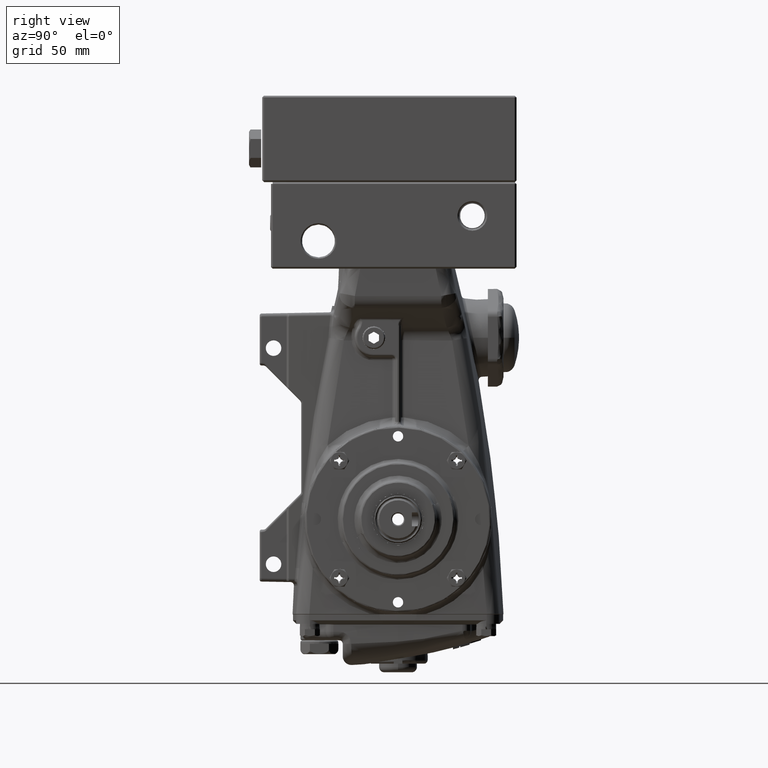
[diagram: clean part render]
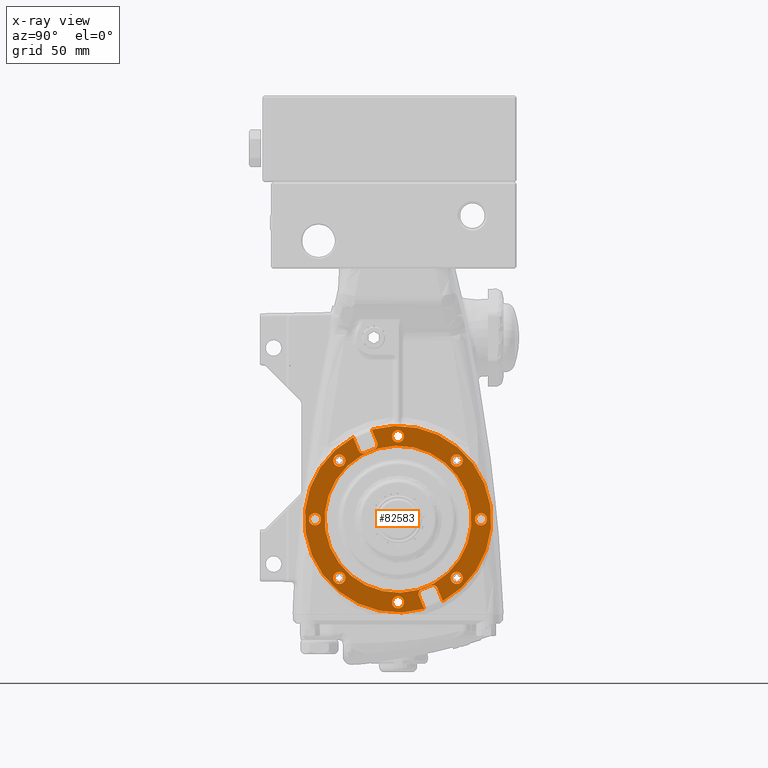
[diagram: x-ray — body ghosted, one internal face saturated and labeled with its STEP entity id]
A machine part, right view, then the same camera in x-ray: the body is ghosted and one INTERNAL B-rep face — a face not visible from any outside direction — is saturated and labeled: STEP entity #82583.
In plain terms, the highlighted planar face has unit normal (1, -0, -0).
Its self-contained STEP definition (entity closure, byte-faithful):
#111 = CARTESIAN_POINT ( 'NONE',  ( 2.805118110236220375, -0.1273062347948776818, -1.942495748554252444 ) ) ;
#436 = CARTESIAN_POINT ( 'NONE',  ( 2.805118110236220375, 0.4909394121759702023, -1.630885175054118452 ) ) ;
#502 = EDGE_CURVE ( 'NONE', #15230, #66706, #2911, .T. ) ;
#674 = AXIS2_PLACEMENT_3D ( 'NONE', #65911, #72049, #46215 ) ;
#861 = CARTESIAN_POINT ( 'NONE',  ( 2.805118110236220375, 1.545861422509051675, 0.6403167667525806461 ) ) ;
#1009 = CARTESIAN_POINT ( 'NONE',  ( 2.805118110236219042, -0.7868191351407367584, 1.500140080860280056 ) ) ;
#1464 = ORIENTED_EDGE ( 'NONE', *, *, #45461, .T. ) ;
#1624 = CARTESIAN_POINT ( 'NONE',  ( 2.805118110236220375, -1.964153336835031238, -0.8135789506974163698 ) ) ;
#1729 = CARTESIAN_POINT ( 'NONE',  ( 2.805118110236220375, -0.1273062347948639705, 1.837031810500866946 ) ) ;
#1845 = CARTESIAN_POINT ( 'NONE',  ( 2.805118110236220375, -0.6434612818275287083, 1.553452953450048080 ) ) ;
#2089 = EDGE_LOOP ( 'NONE', ( #63212, #4802 ) ) ;
#2306 = AXIS2_PLACEMENT_3D ( 'NONE', #37317, #23365, #63992 ) ;
#2580 = AXIS2_PLACEMENT_3D ( 'NONE', #78531, #10482, #43662 ) ;
#2657 = ORIENTED_EDGE ( 'NONE', *, *, #49130, .T. ) ;
#2798 = CIRCLE ( 'NONE', #46090, 0.1377952755905513804 ) ;
#2911 = CIRCLE ( 'NONE', #16916, 0.1377952755905513804 ) ;
#3038 = CARTESIAN_POINT ( 'NONE',  ( 2.805118110236220375, -0.8908129129571930038, 1.554810866356401311 ) ) ;
#3300 = FACE_BOUND ( 'NONE', #48386, .T. ) ;
#3475 = CARTESIAN_POINT ( 'NONE',  ( 2.805118110236220375, -0.8961633260542218871, 1.567727906219549716 ) ) ;
#3607 = DIRECTION ( 'NONE',  ( 0.000000000000000000, -0.9238795325112921786, -0.3826834323650769032 ) ) ;
#3942 = VERTEX_POINT ( 'NONE', #26843 ) ;
#4054 = CARTESIAN_POINT ( 'NONE',  ( 2.805118110236219930, -0.4909394121762119534, 1.630885175053711666 ) ) ;
#4121 = CARTESIAN_POINT ( 'NONE',  ( 2.805118110236220375, -1.889763779527559695, 1.203186958147053424E-14 ) ) ;
#4460 = DIRECTION ( 'NONE',  ( 0.000000000000000000, -0.9238795325112920676, -0.3826834323650769032 ) ) ;
#4587 = FACE_BOUND ( 'NONE', #19043, .T. ) ;
#4607 = DIRECTION ( 'NONE',  ( 0.000000000000000000, -0.9238795325112921786, -0.3826834323650766256 ) ) ;
#4802 = ORIENTED_EDGE ( 'NONE', *, *, #41402, .F. ) ;
#5210 = VERTEX_POINT ( 'NONE', #61442 ) ;
#5459 = DIRECTION ( 'NONE',  ( 1.000000000000000000, -3.956146429304290926E-21, -1.785546499036267062E-24 ) ) ;
#5547 = EDGE_CURVE ( 'NONE', #28955, #66450, #64595, .T. ) ;
#5760 = DIRECTION ( 'NONE',  ( 1.000000000000000000, -3.956146429304291678E-21, -1.785546499036624119E-24 ) ) ;
#6160 = CARTESIAN_POINT ( 'NONE',  ( 2.805118110236221263, 0.4972461327645210094, -1.623936383753845858 ) ) ;
#6195 = CARTESIAN_POINT ( 'NONE',  ( 2.805118110236220375, -1.336264783344670137, -1.336264783344653484 ) ) ;
#6239 = EDGE_CURVE ( 'NONE', #3942, #78410, #77165, .T. ) ;
#6849 = CARTESIAN_POINT ( 'NONE',  ( 2.805118110236220375, -3.414809992080329023E-16, -8.730175170377865435E-15 ) ) ;
#7034 = CARTESIAN_POINT ( 'NONE',  ( 2.805118110236221263, 0.5099515284297724271, -1.611538340931313540 ) ) ;
#7399 = VERTEX_POINT ( 'NONE', #73603 ) ;
#7561 = DIRECTION ( 'NONE',  ( 0.000000000000000000, -0.9238795325112921786, -0.3826834323650769032 ) ) ;
#7705 = CIRCLE ( 'NONE', #674, 0.1377952755905511029 ) ;
#7852 = VERTEX_POINT ( 'NONE', #1729 ) ;
#8240 = CARTESIAN_POINT ( 'NONE',  ( 2.805118110236220375, 0.7868191351406462752, -1.500140080860335123 ) ) ;
#8374 = CARTESIAN_POINT ( 'NONE',  ( 2.805118110236220375, -3.414809992080329023E-16, -8.730175170377865435E-15 ) ) ;
#8450 = ORIENTED_EDGE ( 'NONE', *, *, #78489, .T. ) ;
#9143 = CARTESIAN_POINT ( 'NONE',  ( 2.805118110236220375, 1.336264783344659479, 1.336264783344646379 ) ) ;
#9334 = EDGE_CURVE ( 'NONE', #32316, #28023, #36297, .T. ) ;
#9430 = CARTESIAN_POINT ( 'NONE',  ( 2.805118110236220375, -1.463571018139502522, 1.283532814317981829 ) ) ;
#9592 = EDGE_CURVE ( 'NONE', #63619, #68824, #2798, .T. ) ;
#9633 = CIRCLE ( 'NONE', #61294, 0.1377952755905513804 ) ;
#10303 = CARTESIAN_POINT ( 'NONE',  ( 2.805118110236220375, 0.4296690380452569680, -1.633114568622722640 ) ) ;
#10482 = DIRECTION ( 'NONE',  ( 1.000000000000000000, -3.956146429304291678E-21, -1.785546499036624119E-24 ) ) ;
#10726 = AXIS2_PLACEMENT_3D ( 'NONE', #73290, #59763, #19930 ) ;
#10731 = B_SPLINE_CURVE_WITH_KNOTS ( 'NONE', 3,
 ( #15225, #54988, #20903, #61552, #8240, #33546, #66791, #81671, #60270, #53682, #75536, #15646, #61133, #27025, #40541, #54546, #28297, #41844, #67210, #34839 ),
 .UNSPECIFIED., .F., .F.,
 ( 4, 1, 1, 1, 2, 2, 2, 1, 1, 1, 2, 2, 4 ),
 ( -1.000000000000000000, -0.8750000000000248690, -0.8125000000000373035, -0.7812500000000426326, -0.7656250000000452971, -0.7500000000000479616, -0.5000000000000782707, -0.3750000000000915934, -0.3125000000000969225, -0.2812500000000981437, -0.2656250000000963674, -0.2500000000000947020, -0.000000000000000000 ),
 .UNSPECIFIED. ) ;
#11195 = DIRECTION ( 'NONE',  ( 1.000000000000000000, -3.956146429304291678E-21, -1.785546499036624119E-24 ) ) ;
#11254 = DIRECTION ( 'NONE',  ( 1.000000000000000000, -3.956146429304291678E-21, -1.785546499036624119E-24 ) ) ;
#11489 = CARTESIAN_POINT ( 'NONE',  ( 2.805118110236220375, -0.5099515284301670004, 1.611538340931132796 ) ) ;
#12259 = CARTESIAN_POINT ( 'NONE',  ( 2.805118110236220375, -3.414809992080329023E-16, -8.730175170377865435E-15 ) ) ;
#13116 = AXIS2_PLACEMENT_3D ( 'NONE', #52705, #66240, #26051 ) ;
#13164 = CARTESIAN_POINT ( 'NONE',  ( 2.805118110236220819, 0.4672714267934501287, -1.714023624539579682 ) ) ;
#13361 = CARTESIAN_POINT ( 'NONE',  ( 2.805118110236220375, 1.463571018139512292, -1.283532814317989157 ) ) ;
#13481 = CARTESIAN_POINT ( 'NONE',  ( 2.805118110236220375, -1.019534369412420372, 1.865571952299044156 ) ) ;
#14140 = CARTESIAN_POINT ( 'NONE',  ( 2.805118110236220819, -0.7807914855590868397, 1.500657681009609057 ) ) ;
#14459 = CARTESIAN_POINT ( 'NONE',  ( 2.805118110236220819, 0.4691470212931989625, -1.725902559881855591 ) ) ;
#15196 = EDGE_CURVE ( 'NONE', #28468, #5210, #24278, .T. ) ;
#15225 = CARTESIAN_POINT ( 'NONE',  ( 2.805118110236220375, 0.7525809116516964936, -1.508254122855765100 ) ) ;
#15230 = VERTEX_POINT ( 'NONE', #13361 ) ;
#15314 = EDGE_CURVE ( 'NONE', #25276, #24143, #20080, .T. ) ;
#15646 = CARTESIAN_POINT ( 'NONE',  ( 2.805118110236220375, 0.8535533522769301884, -1.516459622225830639 ) ) ;
#15849 = LINE ( 'NONE', #1845, #42242 ) ;
#15999 = ORIENTED_EDGE ( 'NONE', *, *, #55533, .F. ) ;
#16465 = VERTEX_POINT ( 'NONE', #77575 ) ;
#16916 = AXIS2_PLACEMENT_3D ( 'NONE', #70699, #11254, #64569 ) ;
#17201 = CARTESIAN_POINT ( 'NONE',  ( 2.805118110236221263, -0.4665541920305201762, 1.703654818292908990 ) ) ;
#17228 = VERTEX_POINT ( 'NONE', #56305 ) ;
#17310 = FACE_BOUND ( 'NONE', #36356, .T. ) ;
#17716 = CIRCLE ( 'NONE', #10726, 0.1377952755905513804 ) ;
#17751 = FACE_BOUND ( 'NONE', #76003, .T. ) ;
#17796 = VERTEX_POINT ( 'NONE', #31653 ) ;
#17906 = ORIENTED_EDGE ( 'NONE', *, *, #75611, .T. ) ;
#18059 = CARTESIAN_POINT ( 'NONE',  ( 2.805118110236219930, -0.4952912884582660880, 1.625978742342757410 ) ) ;
#18130 = DIRECTION ( 'NONE',  ( 0.000000000000000000, -0.9238795325112921786, -0.3826834323650769032 ) ) ;
#18865 = CIRCLE ( 'NONE', #30007, 0.1377952755905513249 ) ;
#18940 = VERTEX_POINT ( 'NONE', #35928 ) ;
#19043 = EDGE_LOOP ( 'NONE', ( #17906, #2657 ) ) ;
#19265 = CARTESIAN_POINT ( 'NONE',  ( 2.805118110236220375, -3.414809992080329023E-16, -8.730175170377865435E-15 ) ) ;
#19480 = EDGE_CURVE ( 'NONE', #64112, #52097, #73794, .T. ) ;
#19930 = DIRECTION ( 'NONE',  ( 0.000000000000000000, -0.9238795325112921786, -0.3826834323650764591 ) ) ;
#20080 = CIRCLE ( 'NONE', #68949, 0.1377952755905512139 ) ;
#20211 = EDGE_CURVE ( 'NONE', #17796, #32316, #66061, .T. ) ;
#20369 = VECTOR ( 'NONE', #71321, 39.37007874015748854 ) ;
#20475 = CIRCLE ( 'NONE', #51187, 0.1377952755905513249 ) ;
#20903 = CARTESIAN_POINT ( 'NONE',  ( 2.805118110236220819, 0.7689125502166307413, -1.502533275509448929 ) ) ;
#21010 = EDGE_CURVE ( 'NONE', #66706, #15230, #17716, .T. ) ;
#21026 = ORIENTED_EDGE ( 'NONE', *, *, #5547, .F. ) ;
#21104 = CARTESIAN_POINT ( 'NONE',  ( 2.805118110236221263, -0.8722268768960074192, 1.531955561956389600 ) ) ;
#21436 = DIRECTION ( 'NONE',  ( 0.000000000000000000, -0.9238795325112919565, -0.3826834323650769587 ) ) ;
#21543 = CARTESIAN_POINT ( 'NONE',  ( 2.805118110236221263, -0.8080628827838254313, 1.499661211049318155 ) ) ;
#22130 = ORIENTED_EDGE ( 'NONE', *, *, #70976, .T. ) ;
#22170 = VERTEX_POINT ( 'NONE', #82956 ) ;
#22543 = AXIS2_PLACEMENT_3D ( 'NONE', #32107, #5459, #58806 ) ;
#22892 = DIRECTION ( 'NONE',  ( 0.000000000000000000, -0.9238795325112921786, -0.3826834323650766256 ) ) ;
#23183 = CARTESIAN_POINT ( 'NONE',  ( 2.805118110236220375, -0.8708787263448519722, 1.530632386980784299 ) ) ;
#23365 = DIRECTION ( 'NONE',  ( 1.000000000000000000, -3.956146429304291678E-21, -1.785546499036624119E-24 ) ) ;
#23924 = VERTEX_POINT ( 'NONE', #81225 ) ;
#24001 = EDGE_CURVE ( 'NONE', #78410, #17796, #10731, .T. ) ;
#24126 = CIRCLE ( 'NONE', #60453, 2.125984251968504601 ) ;
#24143 = VERTEX_POINT ( 'NONE', #85560 ) ;
#24278 = CIRCLE ( 'NONE', #13116, 0.1377952755905513804 ) ;
#24290 = FACE_BOUND ( 'NONE', #84152, .T. ) ;
#24622 = ORIENTED_EDGE ( 'NONE', *, *, #59242, .F. ) ;
#25045 = CARTESIAN_POINT ( 'NONE',  ( 2.805118110236220375, -0.4748678686395581550, 1.742234198446873439 ) ) ;
#25276 = VERTEX_POINT ( 'NONE', #111 ) ;
#25321 = DIRECTION ( 'NONE',  ( 1.000000000000000000, -3.956146429304291678E-21, -1.785546499036624119E-24 ) ) ;
#25700 = CARTESIAN_POINT ( 'NONE',  ( 2.805118110236220375, 0.4296690380452569680, -1.633114568622722640 ) ) ;
#25860 = CARTESIAN_POINT ( 'NONE',  ( 2.805118110236220819, 0.4667538266441089156, -1.707995974957897456 ) ) ;
#26051 = DIRECTION ( 'NONE',  ( 0.000000000000000000, -0.9238795325112921786, -0.3826834323650764591 ) ) ;
#26694 = CARTESIAN_POINT ( 'NONE',  ( 2.805118110236220375, 0.4690693739644764548, -1.672132013793123706 ) ) ;
#26843 = CARTESIAN_POINT ( 'NONE',  ( 2.805118110236220375, 0.5343416520033595907, -1.598651784044366364 ) ) ;
#27025 = CARTESIAN_POINT ( 'NONE',  ( 2.805118110236220819, 0.8688363677557493503, -1.528677542674421019 ) ) ;
#27126 = CARTESIAN_POINT ( 'NONE',  ( 2.805118110236220819, 0.4985693077401610052, -1.622588233202639119 ) ) ;
#27565 = CARTESIAN_POINT ( 'NONE',  ( 2.805118110236220819, 0.4992955804005564935, -1.621867832568931522 ) ) ;
#28023 = VERTEX_POINT ( 'NONE', #53224 ) ;
#28297 = CARTESIAN_POINT ( 'NONE',  ( 2.805118110236221263, 0.8729472775296476250, -1.532681834616744565 ) ) ;
#28468 = VERTEX_POINT ( 'NONE', #32321 ) ;
#28500 = CARTESIAN_POINT ( 'NONE',  ( 2.805118110236220375, 1.889763779527559251, -1.528661035517209716E-14 ) ) ;
#28898 = B_SPLINE_CURVE_WITH_KNOTS ( 'NONE', 3,
 ( #25045, #51280, #56992, #58697, #65259, #77944, #17201, #85394, #78370, #70941, #71802, #63964, #4054, #18059, #38561, #57401, #37284, #11489, #70502, #84089 ),
 .UNSPECIFIED., .F., .F.,
 ( 4, 1, 1, 1, 2, 2, 2, 1, 1, 1, 2, 2, 4 ),
 ( -1.000000000000000000, -0.8750000000000139888, -0.8125000000000232037, -0.7812500000000303091, -0.7656250000000315303, -0.7500000000000326406, -0.5000000000000283107, -0.3750000000000283107, -0.3125000000000283107, -0.2812500000000281997, -0.2656250000000269784, -0.2500000000000257572, -0.000000000000000000 ),
 .UNSPECIFIED. ) ;
#28955 = VERTEX_POINT ( 'NONE', #39523 ) ;
#28959 = DIRECTION ( 'NONE',  ( -3.655686012714764575E-21, -0.9238795325112920676, -0.3826834323650769587 ) ) ;
#29855 = CARTESIAN_POINT ( 'NONE',  ( 2.805118110236220375, -0.5343416520033602568, 1.598651784044348378 ) ) ;
#30007 = AXIS2_PLACEMENT_3D ( 'NONE', #43102, #11195, #4607 ) ;
#30582 = DIRECTION ( 'NONE',  ( 1.000000000000000000, -3.956146429304291678E-21, -1.785546499036624119E-24 ) ) ;
#31116 = DIRECTION ( 'NONE',  ( 1.000000000000000000, -3.956146429304291678E-21, -1.785546499036624119E-24 ) ) ;
#31257 = FACE_BOUND ( 'NONE', #79265, .T. ) ;
#31653 = CARTESIAN_POINT ( 'NONE',  ( 2.805118110236220375, 0.8961633260542211099, -1.567727906219567258 ) ) ;
#31853 = CARTESIAN_POINT ( 'NONE',  ( 2.805118110236220375, -3.414809992080329023E-16, -8.730175170377865435E-15 ) ) ;
#32070 = DIRECTION ( 'NONE',  ( 1.000000000000000000, -3.956146429304291678E-21, -1.785546499036624119E-24 ) ) ;
#32107 = CARTESIAN_POINT ( 'NONE',  ( 2.805118110236220375, 0.6403167667525887508, -1.545861422509060779 ) ) ;
#32316 = VERTEX_POINT ( 'NONE', #53873 ) ;
#32321 = CARTESIAN_POINT ( 'NONE',  ( 2.805118110236220375, 1.208958548549796230, 1.283532814317962512 ) ) ;
#32830 = DIRECTION ( 'NONE',  ( 0.000000000000000000, -0.9238795325112921786, -0.3826834323650764591 ) ) ;
#32998 = CIRCLE ( 'NONE', #2306, 0.1377952755905513804 ) ;
#33546 = CARTESIAN_POINT ( 'NONE',  ( 2.805118110236220375, 0.7894213096565010357, -1.500008294460724478 ) ) ;
#33662 = CIRCLE ( 'NONE', #46238, 2.125984251968504601 ) ;
#33673 = DIRECTION ( 'NONE',  ( 0.000000000000000000, -0.9238795325112921786, -0.3826834323650769587 ) ) ;
#33761 = CARTESIAN_POINT ( 'NONE',  ( 2.805118110236220375, -0.8688363677557683351, 1.528677542674436118 ) ) ;
#34233 = VECTOR ( 'NONE', #69737, 39.37007874015748854 ) ;
#34421 = CIRCLE ( 'NONE', #86175, 1.673228346456693272 ) ;
#34518 = ORIENTED_EDGE ( 'NONE', *, *, #24001, .F. ) ;
#34738 = VERTEX_POINT ( 'NONE', #1624 ) ;
#34839 = CARTESIAN_POINT ( 'NONE',  ( 2.805118110236220375, 0.8961633260542211099, -1.567727906219567258 ) ) ;
#35058 = VERTEX_POINT ( 'NONE', #77131 ) ;
#35416 = AXIS2_PLACEMENT_3D ( 'NONE', #8374, #73520, #33673 ) ;
#35928 = CARTESIAN_POINT ( 'NONE',  ( 2.805118110236220375, 2.017070014322422278, 0.05273196902666855285 ) ) ;
#36297 = CIRCLE ( 'NONE', #41907, 2.125984251968504601 ) ;
#36356 = EDGE_LOOP ( 'NONE', ( #51013, #63256 ) ) ;
#36674 = CIRCLE ( 'NONE', #45048, 0.1377952755905513804 ) ;
#37284 = CARTESIAN_POINT ( 'NONE',  ( 2.805118110236220375, -0.4992955804005333453, 1.621867832568924195 ) ) ;
#37317 = CARTESIAN_POINT ( 'NONE',  ( 2.805118110236220375, -1.336264783344670137, -1.336264783344653484 ) ) ;
#37432 = EDGE_CURVE ( 'NONE', #62659, #34738, #24126, .T. ) ;
#38561 = CARTESIAN_POINT ( 'NONE',  ( 2.805118110236220375, -0.4972461327646071627, 1.623936383753691759 ) ) ;
#38886 = DIRECTION ( 'NONE',  ( 0.000000000000000000, -0.9238795325112921786, -0.3826834323650769587 ) ) ;
#38987 = EDGE_LOOP ( 'NONE', ( #64131, #8450 ) ) ;
#39523 = CARTESIAN_POINT ( 'NONE',  ( 2.805118110236220375, -0.7525809116516970487, 1.508254122855747337 ) ) ;
#39788 = CARTESIAN_POINT ( 'NONE',  ( 2.805118110236220819, 0.4665541920305094625, -1.703654818292904327 ) ) ;
#40541 = CARTESIAN_POINT ( 'NONE',  ( 2.805118110236222151, 0.8708787263448402038, -1.530632386980782966 ) ) ;
#41051 = AXIS2_PLACEMENT_3D ( 'NONE', #28500, #55196, #7561 ) ;
#41402 = EDGE_CURVE ( 'NONE', #84430, #73225, #57811, .T. ) ;
#41844 = CARTESIAN_POINT ( 'NONE',  ( 2.805118110236220819, 0.8832767691674121568, -1.543337782646313494 ) ) ;
#41907 = AXIS2_PLACEMENT_3D ( 'NONE', #31853, #25321, #53253 ) ;
#42088 = DIRECTION ( 'NONE',  ( 1.000000000000000000, -3.956146429304291678E-21, -1.785546499036624119E-24 ) ) ;
#42242 = VECTOR ( 'NONE', #28959, 39.37007874015748143 ) ;
#43102 = CARTESIAN_POINT ( 'NONE',  ( 2.805118110236220375, -7.512581982576723358E-16, 1.889763779527550591 ) ) ;
#43245 = CARTESIAN_POINT ( 'NONE',  ( 2.805118110236219930, -0.7894213096565558807, 1.500008294460684288 ) ) ;
#43395 = EDGE_LOOP ( 'NONE', ( #66057, #66533 ) ) ;
#43605 = DIRECTION ( 'NONE',  ( 0.000000000000000000, -0.9238795325112921786, -0.3826834323650764591 ) ) ;
#43662 = DIRECTION ( 'NONE',  ( 0.000000000000000000, -0.9238795325112919565, -0.3826834323650772363 ) ) ;
#43801 = CIRCLE ( 'NONE', #41051, 0.1377952755905513804 ) ;
#44135 = VERTEX_POINT ( 'NONE', #65763 ) ;
#44398 = EDGE_CURVE ( 'NONE', #68824, #63619, #71960, .T. ) ;
#44647 = CARTESIAN_POINT ( 'NONE',  ( 2.805118110236220375, 0.8509644954599208111, -1.458608276395398917 ) ) ;
#45048 = AXIS2_PLACEMENT_3D ( 'NONE', #6195, #52963, #32830 ) ;
#45431 = DIRECTION ( 'NONE',  ( 0.000000000000000000, -0.9238795325112920676, -0.3826834323650769032 ) ) ;
#45461 = EDGE_CURVE ( 'NONE', #7852, #22170, #20475, .T. ) ;
#45598 = DIRECTION ( 'NONE',  ( 1.000000000000000000, -3.956146429304291678E-21, -1.785546499036624119E-24 ) ) ;
#45712 = CARTESIAN_POINT ( 'NONE',  ( 2.805118110236220375, -0.8961633260542218871, 1.567727906219549716 ) ) ;
#45933 = CARTESIAN_POINT ( 'NONE',  ( 2.805118110236221263, 0.4662749568330826766, -1.686752227315165387 ) ) ;
#45953 = EDGE_CURVE ( 'NONE', #73225, #84430, #34421, .T. ) ;
#46090 = AXIS2_PLACEMENT_3D ( 'NONE', #4121, #32070, #18130 ) ;
#46215 = DIRECTION ( 'NONE',  ( 0.000000000000000000, -0.9238795325112919565, -0.3826834323650772363 ) ) ;
#46238 = AXIS2_PLACEMENT_3D ( 'NONE', #19265, #54185, #46316 ) ;
#46316 = DIRECTION ( 'NONE',  ( 0.000000000000000000, -0.9238795325112919565, -0.3826834323650769587 ) ) ;
#46865 = CARTESIAN_POINT ( 'NONE',  ( 2.805118110236220375, -1.545861422509052341, -0.6403167667525981877 ) ) ;
#46922 = CARTESIAN_POINT ( 'NONE',  ( 2.805118110236221263, -0.7590329436167024824, 1.505581603710978156 ) ) ;
#47012 = EDGE_CURVE ( 'NONE', #34738, #16465, #70636, .T. ) ;
#47353 = CARTESIAN_POINT ( 'NONE',  ( 2.805118110236220819, -0.8832767691673893973, 1.543337782646235556 ) ) ;
#47596 = CARTESIAN_POINT ( 'NONE',  ( 2.805118110236220375, 0.7525809116516964936, -1.508254122855765100 ) ) ;
#47683 = CARTESIAN_POINT ( 'NONE',  ( 2.805118110236220375, -3.414809992080329023E-16, -8.730175170377865435E-15 ) ) ;
#48110 = AXIS2_PLACEMENT_3D ( 'NONE', #58574, #30582, #45431 ) ;
#48386 = EDGE_LOOP ( 'NONE', ( #70054, #64440 ) ) ;
#48535 = EDGE_CURVE ( 'NONE', #44135, #72944, #28898, .T. ) ;
#49130 = EDGE_CURVE ( 'NONE', #17228, #7399, #36674, .T. ) ;
#49771 = DIRECTION ( 'NONE',  ( 1.000000000000000000, -3.956146429304291678E-21, -1.785546499036624119E-24 ) ) ;
#49904 = LINE ( 'NONE', #76146, #84421 ) ;
#50475 = CARTESIAN_POINT ( 'NONE',  ( 2.805118110236220375, 0.6434612818275281532, -1.553452953450065843 ) ) ;
#50748 = ORIENTED_EDGE ( 'NONE', *, *, #20211, .F. ) ;
#50989 = EDGE_CURVE ( 'NONE', #28023, #73865, #33662, .T. ) ;
#51013 = ORIENTED_EDGE ( 'NONE', *, *, #69554, .T. ) ;
#51187 = AXIS2_PLACEMENT_3D ( 'NONE', #61383, #42088, #22892 ) ;
#51261 = CARTESIAN_POINT ( 'NONE',  ( 2.805118110236220375, -1.889763779527559695, 1.203186958147053424E-14 ) ) ;
#51280 = CARTESIAN_POINT ( 'NONE',  ( 2.805118110236220819, -0.4721953494948516461, 1.735782166482019218 ) ) ;
#51679 = CARTESIAN_POINT ( 'NONE',  ( 2.805118110236220375, -1.468368296594541416E-14, -1.889763779527568799 ) ) ;
#52097 = VERTEX_POINT ( 'NONE', #65102 ) ;
#52705 = CARTESIAN_POINT ( 'NONE',  ( 2.805118110236220375, 1.336264783344659479, 1.336264783344646379 ) ) ;
#52963 = DIRECTION ( 'NONE',  ( 1.000000000000000000, -3.956146429304291678E-21, -1.785546499036624119E-24 ) ) ;
#53221 = CARTESIAN_POINT ( 'NONE',  ( 2.805118110236220375, -1.762457544732696446, 0.05273196902669600311 ) ) ;
#53224 = CARTESIAN_POINT ( 'NONE',  ( 2.805118110236220375, 1.964153336835030572, 0.8135789506973989393 ) ) ;
#53253 = DIRECTION ( 'NONE',  ( 0.000000000000000000, -0.9238795325112919565, -0.3826834323650769587 ) ) ;
#53338 = CARTESIAN_POINT ( 'NONE',  ( 2.805118110236220375, 0.4665314454615004935, -1.702856869318395416 ) ) ;
#53512 = PLANE ( 'NONE',  #22543 ) ;
#53682 = CARTESIAN_POINT ( 'NONE',  ( 2.805118110236220375, 0.8226830963050392187, -1.502455628180452196 ) ) ;
#53763 = CARTESIAN_POINT ( 'NONE',  ( 2.805118110236220375, 1.208958548549785794, -1.388996752371356891 ) ) ;
#53783 = CARTESIAN_POINT ( 'NONE',  ( 2.805118110236220375, 0.4748678686395574333, -1.742234198446890980 ) ) ;
#53873 = CARTESIAN_POINT ( 'NONE',  ( 2.805118110236220375, 1.019534369412419927, -1.865571952299061476 ) ) ;
#54068 = LINE ( 'NONE', #25700, #85663 ) ;
#54185 = DIRECTION ( 'NONE',  ( 1.000000000000000000, -3.956146429304291678E-21, -1.785546499036624119E-24 ) ) ;
#54337 = CARTESIAN_POINT ( 'NONE',  ( 2.805118110236220819, -0.8535533522769729320, 1.516459622225887260 ) ) ;
#54504 = EDGE_CURVE ( 'NONE', #16465, #23924, #54068, .T. ) ;
#54546 = CARTESIAN_POINT ( 'NONE',  ( 2.805118110236220819, 0.8722268768960004248, -1.531955561956397815 ) ) ;
#54988 = CARTESIAN_POINT ( 'NONE',  ( 2.805118110236220819, 0.7590329436165845767, -1.505581603711044103 ) ) ;
#55196 = DIRECTION ( 'NONE',  ( 1.000000000000000000, -3.956146429304291678E-21, -1.785546499036624119E-24 ) ) ;
#55507 = AXIS2_PLACEMENT_3D ( 'NONE', #6849, #61044, #60183 ) ;
#55533 = EDGE_CURVE ( 'NONE', #73865, #44135, #49904, .T. ) ;
#56305 = CARTESIAN_POINT ( 'NONE',  ( 2.805118110236220375, -1.208958548549806888, -1.283532814317969617 ) ) ;
#56406 = CARTESIAN_POINT ( 'NONE',  ( 2.805118110236219930, -0.8436927658831382404, 1.511153370193448087 ) ) ;
#56992 = CARTESIAN_POINT ( 'NONE',  ( 2.805118110236219930, -0.4691470212932667971, 1.725902559881998366 ) ) ;
#57348 = ORIENTED_EDGE ( 'NONE', *, *, #71788, .F. ) ;
#57401 = CARTESIAN_POINT ( 'NONE',  ( 2.805118110236220819, -0.4985693077402068019, 1.622588233202548746 ) ) ;
#57811 = CIRCLE ( 'NONE', #35416, 1.673228346456693272 ) ;
#58574 = CARTESIAN_POINT ( 'NONE',  ( 2.805118110236220375, -1.468368296594541416E-14, -1.889763779527568799 ) ) ;
#58618 = EDGE_CURVE ( 'NONE', #24143, #25276, #77456, .T. ) ;
#58697 = CARTESIAN_POINT ( 'NONE',  ( 2.805118110236220819, -0.4672714267935011434, 1.714023624539680712 ) ) ;
#58806 = DIRECTION ( 'NONE',  ( -3.655686012714763822E-21, -0.9238795325112919565, -0.3826834323650769587 ) ) ;
#59046 = EDGE_CURVE ( 'NONE', #72944, #28955, #15849, .T. ) ;
#59242 = EDGE_CURVE ( 'NONE', #23924, #3942, #75637, .T. ) ;
#59527 = CARTESIAN_POINT ( 'NONE',  ( 2.805118110236222151, 0.4777671159770998655, -1.651122344215687932 ) ) ;
#59763 = DIRECTION ( 'NONE',  ( 1.000000000000000000, -3.956146429304291678E-21, -1.785546499036624119E-24 ) ) ;
#60183 = DIRECTION ( 'NONE',  ( 0.000000000000000000, -0.9238795325112919565, -0.3826834323650769587 ) ) ;
#60270 = CARTESIAN_POINT ( 'NONE',  ( 2.805118110236220819, 0.8080628827834377415, -1.499661211049241327 ) ) ;
#60366 = CARTESIAN_POINT ( 'NONE',  ( 2.805118110236220819, 0.4721953494948121777, -1.735782166481945721 ) ) ;
#60453 = AXIS2_PLACEMENT_3D ( 'NONE', #47683, #82240, #21436 ) ;
#61044 = DIRECTION ( 'NONE',  ( 1.000000000000000000, -3.956146429304291678E-21, -1.785546499036624119E-24 ) ) ;
#61133 = CARTESIAN_POINT ( 'NONE',  ( 2.805118110236220375, 0.8639299350447484649, -1.524325666392330580 ) ) ;
#61135 = EDGE_LOOP ( 'NONE', ( #15999, #75063, #84855, #50748, #34518, #70286, #24622, #61713, #76512, #80438, #57348, #21026, #65994, #62168 ) ) ;
#61294 = AXIS2_PLACEMENT_3D ( 'NONE', #9143, #49771, #43605 ) ;
#61383 = CARTESIAN_POINT ( 'NONE',  ( 2.805118110236220375, -7.512581982576723358E-16, 1.889763779527550591 ) ) ;
#61442 = CARTESIAN_POINT ( 'NONE',  ( 2.805118110236220375, 1.463571018139522728, 1.388996752371330246 ) ) ;
#61552 = CARTESIAN_POINT ( 'NONE',  ( 2.805118110236220375, 0.7807914855589331848, -1.500657681009689881 ) ) ;
#61713 = ORIENTED_EDGE ( 'NONE', *, *, #54504, .F. ) ;
#62168 = ORIENTED_EDGE ( 'NONE', *, *, #48535, .F. ) ;
#62592 = ORIENTED_EDGE ( 'NONE', *, *, #44398, .T. ) ;
#62659 = VERTEX_POINT ( 'NONE', #13481 ) ;
#62789 = LINE ( 'NONE', #10303, #34233 ) ;
#63212 = ORIENTED_EDGE ( 'NONE', *, *, #45953, .F. ) ;
#63220 = FACE_OUTER_BOUND ( 'NONE', #61135, .T. ) ;
#63256 = ORIENTED_EDGE ( 'NONE', *, *, #69643, .T. ) ;
#63450 = DIRECTION ( 'NONE',  ( 1.512302064640201627E-21, 0.3826834323650767922, -0.9238795325112921786 ) ) ;
#63619 = VERTEX_POINT ( 'NONE', #72182 ) ;
#63964 = CARTESIAN_POINT ( 'NONE',  ( 2.805118110236220375, -0.4830733680097410998, 1.641261757821494749 ) ) ;
#63992 = DIRECTION ( 'NONE',  ( 0.000000000000000000, -0.9238795325112921786, -0.3826834323650764591 ) ) ;
#64112 = VERTEX_POINT ( 'NONE', #9430 ) ;
#64131 = ORIENTED_EDGE ( 'NONE', *, *, #15196, .T. ) ;
#64440 = ORIENTED_EDGE ( 'NONE', *, *, #15314, .T. ) ;
#64490 = FACE_BOUND ( 'NONE', #43395, .T. ) ;
#64569 = DIRECTION ( 'NONE',  ( 0.000000000000000000, -0.9238795325112921786, -0.3826834323650764591 ) ) ;
#64595 = B_SPLINE_CURVE_WITH_KNOTS ( 'NONE', 3,
 ( #83519, #46922, #81442, #14140, #1009, #43245, #81015, #67881, #21543, #67428, #56406, #54337, #83096, #33761, #23183, #21104, #69919, #47353, #3038, #3475 ),
 .UNSPECIFIED., .F., .F.,
 ( 4, 1, 1, 1, 2, 2, 2, 1, 1, 1, 2, 2, 4 ),
 ( -1.000000000000000000, -0.8750000000000054401, -0.8125000000000074385, -0.7812500000000096589, -0.7656250000000095479, -0.7500000000000095479, -0.5000000000000102141, -0.3750000000000124345, -0.3125000000000136557, -0.2812500000000150990, -0.2656250000000157652, -0.2500000000000164313, -0.000000000000000000 ),
 .UNSPECIFIED. ) ;
#64727 = CIRCLE ( 'NONE', #82928, 0.1377952755905513804 ) ;
#65102 = CARTESIAN_POINT ( 'NONE',  ( 2.805118110236220375, -1.208958548549776246, 1.388996752371349563 ) ) ;
#65259 = CARTESIAN_POINT ( 'NONE',  ( 2.805118110236220375, -0.4667538266441397243, 1.707995974957949192 ) ) ;
#65470 = DIRECTION ( 'NONE',  ( -1.512302064640201627E-21, -0.3826834323650767922, 0.9238795325112921786 ) ) ;
#65716 = CARTESIAN_POINT ( 'NONE',  ( 2.805118110236220375, 1.889763779527559251, -1.528661035517209716E-14 ) ) ;
#65763 = CARTESIAN_POINT ( 'NONE',  ( 2.805118110236220375, -0.4748678686395581550, 1.742234198446873439 ) ) ;
#65911 = CARTESIAN_POINT ( 'NONE',  ( 2.805118110236220375, -1.336264783344639495, 1.336264783344665696 ) ) ;
#65994 = ORIENTED_EDGE ( 'NONE', *, *, #59046, .F. ) ;
#66057 = ORIENTED_EDGE ( 'NONE', *, *, #21010, .T. ) ;
#66061 = LINE ( 'NONE', #44647, #20369 ) ;
#66182 = ORIENTED_EDGE ( 'NONE', *, *, #71166, .T. ) ;
#66240 = DIRECTION ( 'NONE',  ( 1.000000000000000000, -3.956146429304291678E-21, -1.785546499036624119E-24 ) ) ;
#66450 = VERTEX_POINT ( 'NONE', #45712 ) ;
#66475 = CARTESIAN_POINT ( 'NONE',  ( 2.805118110236219930, 0.4952912884581239239, -1.625978742343001882 ) ) ;
#66533 = ORIENTED_EDGE ( 'NONE', *, *, #502, .T. ) ;
#66706 = VERTEX_POINT ( 'NONE', #53763 ) ;
#66791 = CARTESIAN_POINT ( 'NONE',  ( 2.805118110236222151, 0.7911602918056692690, -1.499940446246724068 ) ) ;
#67210 = CARTESIAN_POINT ( 'NONE',  ( 2.805118110236220819, 0.8908129129572163185, -1.554810866356478805 ) ) ;
#67428 = CARTESIAN_POINT ( 'NONE',  ( 2.805118110236219930, -0.8226830963049948098, 1.502455628180349834 ) ) ;
#67881 = CARTESIAN_POINT ( 'NONE',  ( 2.805118110236220375, -0.7919582407801679658, 1.499917699677688843 ) ) ;
#68824 = VERTEX_POINT ( 'NONE', #53221 ) ;
#68949 = AXIS2_PLACEMENT_3D ( 'NONE', #51679, #5760, #4460 ) ;
#69554 = EDGE_CURVE ( 'NONE', #18940, #35058, #64727, .T. ) ;
#69643 = EDGE_CURVE ( 'NONE', #35058, #18940, #43801, .T. ) ;
#69737 = DIRECTION ( 'NONE',  ( -1.512302064640201627E-21, -0.3826834323650767922, 0.9238795325112921786 ) ) ;
#69919 = CARTESIAN_POINT ( 'NONE',  ( 2.805118110236220375, -0.8729472775296506226, 1.532681834616729910 ) ) ;
#70054 = ORIENTED_EDGE ( 'NONE', *, *, #58618, .T. ) ;
#70286 = ORIENTED_EDGE ( 'NONE', *, *, #6239, .F. ) ;
#70502 = CARTESIAN_POINT ( 'NONE',  ( 2.805118110236221263, -0.5214246121403324219, 1.604002197141328745 ) ) ;
#70636 = CIRCLE ( 'NONE', #55507, 2.125984251968504601 ) ;
#70699 = CARTESIAN_POINT ( 'NONE',  ( 2.805118110236220375, 1.336264783344649043, -1.336264783344673024 ) ) ;
#70941 = CARTESIAN_POINT ( 'NONE',  ( 2.805118110236221263, -0.4690693739641116911, 1.672132013793699024 ) ) ;
#70976 = EDGE_CURVE ( 'NONE', #52097, #64112, #7705, .T. ) ;
#71166 = EDGE_CURVE ( 'NONE', #22170, #7852, #18865, .T. ) ;
#71321 = DIRECTION ( 'NONE',  ( 1.512302064640201627E-21, 0.3826834323650767922, -0.9238795325112921786 ) ) ;
#71788 = EDGE_CURVE ( 'NONE', #66450, #62659, #62789, .T. ) ;
#71802 = CARTESIAN_POINT ( 'NONE',  ( 2.805118110236221263, -0.4777671159772848286, 1.651122344215373516 ) ) ;
#71960 = CIRCLE ( 'NONE', #83175, 0.1377952755905513804 ) ;
#72049 = DIRECTION ( 'NONE',  ( 1.000000000000000000, -3.956146429304291678E-21, -1.785546499036624119E-24 ) ) ;
#72182 = CARTESIAN_POINT ( 'NONE',  ( 2.805118110236220375, -2.017070014322422722, -0.05273196902667181413 ) ) ;
#72281 = DIRECTION ( 'NONE',  ( 0.000000000000000000, -0.9238795325112921786, -0.3826834323650769032 ) ) ;
#72605 = CARTESIAN_POINT ( 'NONE',  ( 2.805118110236220375, 0.5343416520033595907, -1.598651784044366364 ) ) ;
#72944 = VERTEX_POINT ( 'NONE', #29855 ) ;
#73225 = VERTEX_POINT ( 'NONE', #46865 ) ;
#73290 = CARTESIAN_POINT ( 'NONE',  ( 2.805118110236220375, 1.336264783344649043, -1.336264783344673024 ) ) ;
#73520 = DIRECTION ( 'NONE',  ( -1.000000000000000000, 3.956146429304291678E-21, 1.785546499036624119E-24 ) ) ;
#73603 = CARTESIAN_POINT ( 'NONE',  ( 2.805118110236220375, -1.463571018139533386, -1.388996752371337351 ) ) ;
#73794 = CIRCLE ( 'NONE', #2580, 0.1377952755905511029 ) ;
#73865 = VERTEX_POINT ( 'NONE', #86476 ) ;
#75063 = ORIENTED_EDGE ( 'NONE', *, *, #50989, .F. ) ;
#75266 = VECTOR ( 'NONE', #84173, 39.37007874015748143 ) ;
#75536 = CARTESIAN_POINT ( 'NONE',  ( 2.805118110236220819, 0.8436927658831133714, -1.511153370193423662 ) ) ;
#75611 = EDGE_CURVE ( 'NONE', #7399, #17228, #32998, .T. ) ;
#75637 = B_SPLINE_CURVE_WITH_KNOTS ( 'NONE', 3,
 ( #53783, #60366, #14459, #13164, #25860, #85774, #39788, #53338, #45933, #26694, #59527, #79195, #436, #66475, #6160, #27126, #27565, #7034, #80473, #72605 ),
 .UNSPECIFIED., .F., .F.,
 ( 4, 1, 1, 1, 2, 2, 2, 1, 1, 1, 2, 2, 4 ),
 ( -1.000000000000000000, -0.8749999999999741318, -0.8124999999999589217, -0.7812499999999512612, -0.7656249999999499289, -0.7499999999999487077, -0.4999999999999593658, -0.3749999999999668043, -0.3124999999999705791, -0.2812499999999703570, -0.2656249999999705791, -0.2499999999999708011, -0.000000000000000000 ),
 .UNSPECIFIED. ) ;
#76003 = EDGE_LOOP ( 'NONE', ( #79559, #22130 ) ) ;
#76146 = CARTESIAN_POINT ( 'NONE',  ( 2.805118110236220375, 0.8509644954599208111, -1.458608276395398917 ) ) ;
#76512 = ORIENTED_EDGE ( 'NONE', *, *, #47012, .F. ) ;
#77131 = CARTESIAN_POINT ( 'NONE',  ( 2.805118110236220375, 1.762457544732695780, -0.05273196902669926439 ) ) ;
#77165 = LINE ( 'NONE', #50475, #75266 ) ;
#77197 = FACE_BOUND ( 'NONE', #38987, .T. ) ;
#77456 = CIRCLE ( 'NONE', #48110, 0.1377952755905512139 ) ;
#77575 = CARTESIAN_POINT ( 'NONE',  ( 2.805118110236220375, 0.5982389119977559178, -2.040078244526385198 ) ) ;
#77944 = CARTESIAN_POINT ( 'NONE',  ( 2.805118110236220819, -0.4666220402445244719, 1.705393800442084773 ) ) ;
#78370 = CARTESIAN_POINT ( 'NONE',  ( 2.805118110236221263, -0.4662749568330040728, 1.686752227315048591 ) ) ;
#78410 = VERTEX_POINT ( 'NONE', #47596 ) ;
#78489 = EDGE_CURVE ( 'NONE', #5210, #28468, #9633, .T. ) ;
#78531 = CARTESIAN_POINT ( 'NONE',  ( 2.805118110236220375, -1.336264783344639495, 1.336264783344665696 ) ) ;
#78692 = DIRECTION ( 'NONE',  ( -1.000000000000000000, 3.956146429304291678E-21, 1.785546499036624119E-24 ) ) ;
#79195 = CARTESIAN_POINT ( 'NONE',  ( 2.805118110236220375, 0.4830733680094185245, -1.641261757822029432 ) ) ;
#79265 = EDGE_LOOP ( 'NONE', ( #62592, #86210 ) ) ;
#79559 = ORIENTED_EDGE ( 'NONE', *, *, #19480, .T. ) ;
#80438 = ORIENTED_EDGE ( 'NONE', *, *, #37432, .F. ) ;
#80473 = CARTESIAN_POINT ( 'NONE',  ( 2.805118110236220819, 0.5214246121399377376, -1.604002197141509045 ) ) ;
#81015 = CARTESIAN_POINT ( 'NONE',  ( 2.805118110236221263, -0.7911602918056985789, 1.499940446246694092 ) ) ;
#81225 = CARTESIAN_POINT ( 'NONE',  ( 2.805118110236220375, 0.4748678686395574333, -1.742234198446890980 ) ) ;
#81442 = CARTESIAN_POINT ( 'NONE',  ( 2.805118110236219930, -0.7689125502168349113, 1.502533275509347011 ) ) ;
#81671 = CARTESIAN_POINT ( 'NONE',  ( 2.805118110236220819, 0.7919582407801908364, -1.499917699677711935 ) ) ;
#82240 = DIRECTION ( 'NONE',  ( 1.000000000000000000, -3.956146429304291678E-21, -1.785546499036624119E-24 ) ) ;
#82583 = ADVANCED_FACE ( 'NONE', ( #84205, #63220, #17751, #24290, #77197, #17310, #64490, #3300, #4587, #31257 ), #53512, .F. ) ;
#82928 = AXIS2_PLACEMENT_3D ( 'NONE', #65716, #45598, #72281 ) ;
#82956 = CARTESIAN_POINT ( 'NONE',  ( 2.805118110236220375, 0.1273062347948625272, 1.942495748554234458 ) ) ;
#83096 = CARTESIAN_POINT ( 'NONE',  ( 2.805118110236220819, -0.8639299350447804393, 1.524325666392368994 ) ) ;
#83175 = AXIS2_PLACEMENT_3D ( 'NONE', #51261, #31116, #3607 ) ;
#83519 = CARTESIAN_POINT ( 'NONE',  ( 2.805118110236220375, -0.7525809116516970487, 1.508254122855747337 ) ) ;
#84089 = CARTESIAN_POINT ( 'NONE',  ( 2.805118110236220375, -0.5343416520033602568, 1.598651784044348378 ) ) ;
#84152 = EDGE_LOOP ( 'NONE', ( #66182, #1464 ) ) ;
#84173 = DIRECTION ( 'NONE',  ( 3.655686012714764575E-21, 0.9238795325112920676, 0.3826834323650769587 ) ) ;
#84205 = FACE_BOUND ( 'NONE', #2089, .T. ) ;
#84421 = VECTOR ( 'NONE', #63450, 39.37007874015748854 ) ;
#84430 = VERTEX_POINT ( 'NONE', #861 ) ;
#84855 = ORIENTED_EDGE ( 'NONE', *, *, #9334, .F. ) ;
#85394 = CARTESIAN_POINT ( 'NONE',  ( 2.805118110236220375, -0.4665314454615073214, 1.702856869318384092 ) ) ;
#85560 = CARTESIAN_POINT ( 'NONE',  ( 2.805118110236220375, 0.1273062347948484552, -1.837031810500884932 ) ) ;
#85663 = VECTOR ( 'NONE', #65470, 39.37007874015748854 ) ;
#85774 = CARTESIAN_POINT ( 'NONE',  ( 2.805118110236221263, 0.4666220402445053761, -1.705393800442059460 ) ) ;
#86175 = AXIS2_PLACEMENT_3D ( 'NONE', #12259, #78692, #38886 ) ;
#86210 = ORIENTED_EDGE ( 'NONE', *, *, #9592, .T. ) ;
#86476 = CARTESIAN_POINT ( 'NONE',  ( 2.805118110236220375, -0.5982389119977566949, 2.040078244526367879 ) ) ;